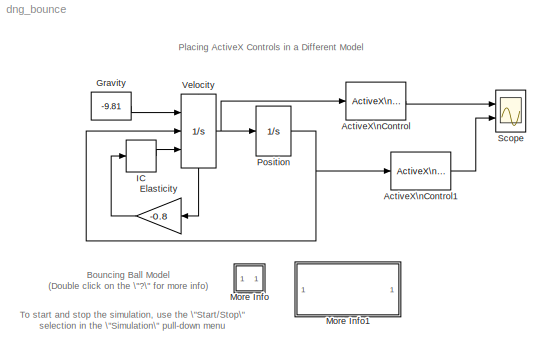
MODEL dng_bounce
KIND model
CONFIG AbsTol = 1e-6
CONFIG FixedStep = auto
CONFIG MaxStep = .01
CONFIG MinStep = auto
CONFIG RelTol = 1e-3
CONFIG Solver = ode23
CONFIG SolverMode = SingleTasking
CONFIG StartTime = 0.0
CONFIG StopTime = 20
BLOCK [Reference] ActiveX\nControl  REF=dnglibv1/ActiveX\nControl
  Ports = [1, 1]
  SourceBlock = dnglibv1/ActiveX\nControl
  SourceType = ActiveX Block
  Tag = 000
  border = on
  connect = both
  dialOut = 0
  inblock = off
  init_fcn = dng_bounce_gui/Velocity
  input = NeedleValue
  output = NeedleValue
  updateParam = 0
BLOCK [Reference] ActiveX\nControl1  REF=dnglibv1/ActiveX\nControl
  Ports = [1, 1]
  SourceBlock = dnglibv1/ActiveX\nControl
  SourceType = ActiveX Block
  Tag = 000
  border = on
  connect = both
  dialOut = 0
  inblock = off
  init_fcn = dng_bounce_gui/Position
  input = PointerValue
  output = PointerValue
  updateParam = 0
BLOCK [Gain] Elasticity
  Gain = -0.8
BLOCK [Constant] Gravity
  Value = -9.81
BLOCK [InitialCondition] IC
  Value = 15
BLOCK [SubSystem] More Info
  MaskDisplay = disp('?')
  MaskIconFrame = on
  MaskIconOpaque = on
  MaskIconRotate = none
  MaskIconUnits = autoscale
  Ports = []
  TreatAsAtomicUnit = off
BLOCK [SubSystem] More Info1
  MaskDisplay = disp('Double click\\nhere for\\nSimulink Help')
  MaskIconFrame = on
  MaskIconOpaque = on
  MaskIconRotate = none
  MaskIconUnits = autoscale
  OpenFcn = simcad(bdroot);
  Ports = []
  TreatAsAtomicUnit = off
BLOCK [Integrator] Position
  InitialCondition = 10
  LimitOutput = on
  LowerSaturationLimit = 0
  Ports = [1, 1]
BLOCK [Scope] Scope
  DataFormat = Array
  NumInputPorts = 2
  Ports = [2]
  TickLabels = on
  TimeRange = 20
  YMax = 20~22.9822
  YMin = -30~0
  ZoomMode = yonly
BLOCK [Integrator] Velocity
  ExternalReset = falling
  InitialConditionSource = external
  Ports = [3, 1, 0, 0, 1]
  ShowStatePort = on
ANNOTATION (root): Bouncing Ball Model\n(Double click on the \"?\" for more info)
ANNOTATION (root): Placing ActiveX Controls in a Different Model
ANNOTATION (root): To start and stop the simulation, use the \"Start/Stop\"\nselection in the \"Simulation\" pull-down menu
ANNOTATION More Info: A rubber ball is thrown into the air with the velocity 15\nmeters per second from a height of 10 m. The position\n of the ball is shown in the Bouncing Ball Display.\nTo view the velocity, double click on the Velocity Scope.
ANNOTATION More Info: This system uses a reset-integrator to change the\ndirection of the ball as it comes into contact with\nthe ground
LINE ActiveX\nControl1:1 -> Scope:2
LINE ActiveX\nControl:1 -> Scope:1
LINE Elasticity:1 -> IC:1
LINE Gravity:1 -> Velocity:1
LINE IC:1 -> Velocity:3
NET Position:1 -> ActiveX\nControl1:1, Velocity:2
NET Velocity:1 -> ActiveX\nControl:1, Position:1
LINE Velocity:state -> Elasticity:1
note: NET lines group one-source signal fan-out (src -> all destinations, sorted); 1:1 wires keep LINE
